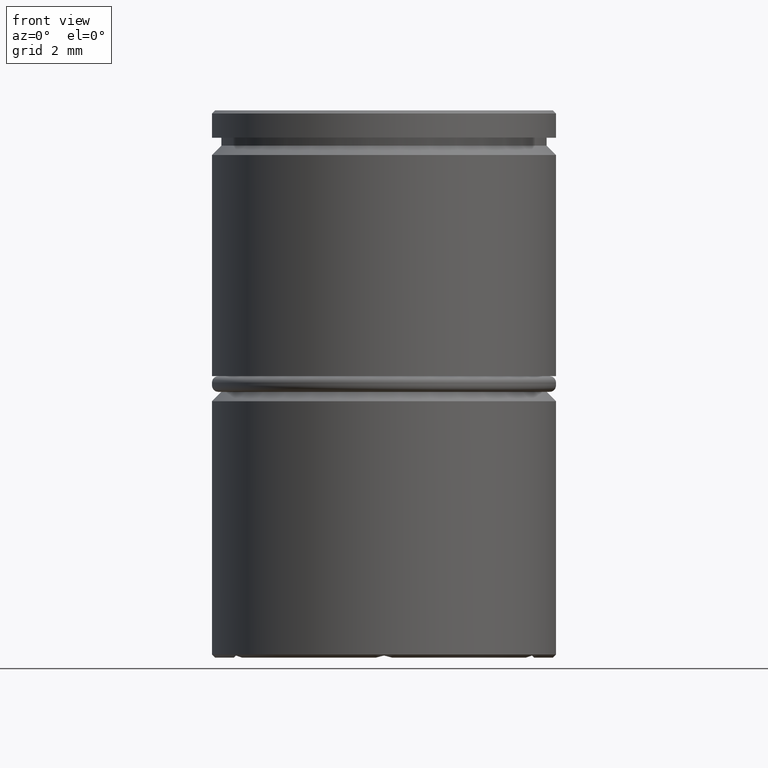
[diagram: clean part render]
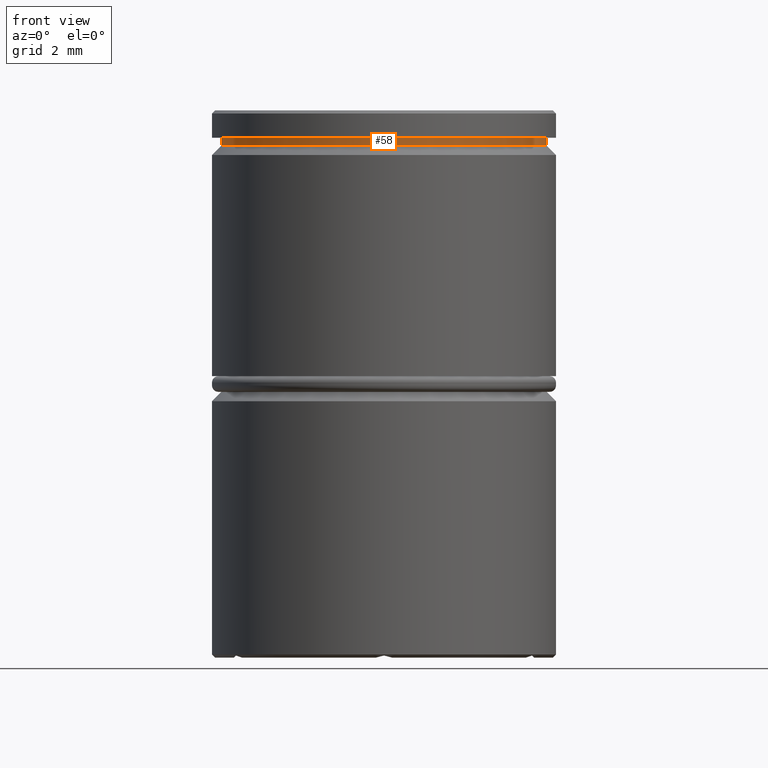
[diagram: same view with one face highlighted and labeled with its STEP entity id]
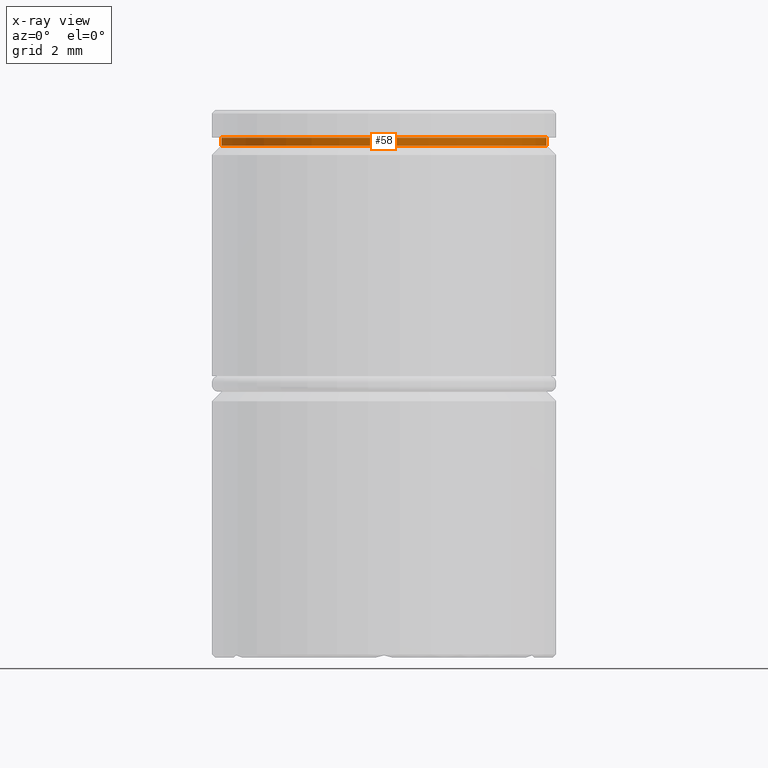
[diagram: x-ray of the same camera — body ghosted, the highlighted face saturated]
A machine part, front view. The second image highlights one B-rep face of the part: STEP entity #58.
The next image is the same camera in x-ray: the body ghosted, the highlighted face saturated — about 0% of this face is hidden behind the body in this view.
In plain terms, the highlighted cylindrical surface (partial cylindrical patch) has radius 5.2 mm, axis along (-0, -0, 1).
Its self-contained STEP definition (entity closure, byte-faithful):
#4 = VERTEX_POINT ( 'NONE', #831 ) ;
#27 = DIRECTION ( 'NONE',  ( 1.000000000000000000, 0.000000000000000000, 0.000000000000000000 ) ) ;
#40 = DIRECTION ( 'NONE',  ( -0.000000000000000000, -0.000000000000000000, 1.000000000000000000 ) ) ;
#58 = ADVANCED_FACE ( 'NONE', ( #516 ), #1033, .T. ) ;
#89 = DIRECTION ( 'NONE',  ( 1.000000000000000000, 0.000000000000000000, 0.000000000000000000 ) ) ;
#108 = AXIS2_PLACEMENT_3D ( 'NONE', #984, #1307, #349 ) ;
#147 = VERTEX_POINT ( 'NONE', #1170 ) ;
#176 = CARTESIAN_POINT ( 'NONE',  ( -5.200000000000000178, 6.368163355566236381E-16, 0.000000000000000000 ) ) ;
#192 = AXIS2_PLACEMENT_3D ( 'NONE', #702, #1359, #89 ) ;
#226 = VERTEX_POINT ( 'NONE', #332 ) ;
#263 = ORIENTED_EDGE ( 'NONE', *, *, #274, .T. ) ;
#274 = EDGE_CURVE ( 'NONE', #1085, #147, #1109, .T. ) ;
#332 = CARTESIAN_POINT ( 'NONE',  ( -5.200000000000000178, 6.368163355566236381E-16, -0.8749999999999998890 ) ) ;
#349 = DIRECTION ( 'NONE',  ( 1.000000000000000000, 0.000000000000000000, 0.000000000000000000 ) ) ;
#443 = ORIENTED_EDGE ( 'NONE', *, *, #1340, .F. ) ;
#464 = ORIENTED_EDGE ( 'NONE', *, *, #518, .F. ) ;
#503 = AXIS2_PLACEMENT_3D ( 'NONE', #986, #40, #27 ) ;
#516 = FACE_OUTER_BOUND ( 'NONE', #716, .T. ) ;
#518 = EDGE_CURVE ( 'NONE', #1085, #226, #1045, .T. ) ;
#559 = CARTESIAN_POINT ( 'NONE',  ( 5.200000000000000178, 0.000000000000000000, 0.000000000000000000 ) ) ;
#667 = LINE ( 'NONE', #559, #1380 ) ;
#702 = CARTESIAN_POINT ( 'NONE',  ( 0.000000000000000000, 0.000000000000000000, 0.000000000000000000 ) ) ;
#716 = EDGE_LOOP ( 'NONE', ( #464, #263, #1076, #443 ) ) ;
#817 = EDGE_CURVE ( 'NONE', #147, #4, #667, .T. ) ;
#831 = CARTESIAN_POINT ( 'NONE',  ( 5.200000000000000178, 0.000000000000000000, -0.8749999999999998890 ) ) ;
#836 = DIRECTION ( 'NONE',  ( -0.000000000000000000, -0.000000000000000000, 1.000000000000000000 ) ) ;
#894 = DIRECTION ( 'NONE',  ( -0.000000000000000000, -0.000000000000000000, 1.000000000000000000 ) ) ;
#984 = CARTESIAN_POINT ( 'NONE',  ( 0.000000000000000000, 0.000000000000000000, -0.8749999999999998890 ) ) ;
#986 = CARTESIAN_POINT ( 'NONE',  ( 0.000000000000000000, 0.000000000000000000, -1.125000000000000222 ) ) ;
#1033 = CYLINDRICAL_SURFACE ( 'NONE', #192, 5.200000000000000178 ) ;
#1045 = LINE ( 'NONE', #176, #1088 ) ;
#1076 = ORIENTED_EDGE ( 'NONE', *, *, #817, .T. ) ;
#1085 = VERTEX_POINT ( 'NONE', #1277 ) ;
#1088 = VECTOR ( 'NONE', #836, 1000.000000000000000 ) ;
#1109 = CIRCLE ( 'NONE', #503, 5.200000000000000178 ) ;
#1139 = CIRCLE ( 'NONE', #108, 5.200000000000000178 ) ;
#1170 = CARTESIAN_POINT ( 'NONE',  ( 5.200000000000000178, 0.000000000000000000, -1.125000000000000222 ) ) ;
#1277 = CARTESIAN_POINT ( 'NONE',  ( -5.200000000000000178, 6.368163355566236381E-16, -1.125000000000000222 ) ) ;
#1307 = DIRECTION ( 'NONE',  ( -0.000000000000000000, -0.000000000000000000, 1.000000000000000000 ) ) ;
#1340 = EDGE_CURVE ( 'NONE', #226, #4, #1139, .T. ) ;
#1359 = DIRECTION ( 'NONE',  ( -0.000000000000000000, -0.000000000000000000, 1.000000000000000000 ) ) ;
#1380 = VECTOR ( 'NONE', #894, 1000.000000000000000 ) ;